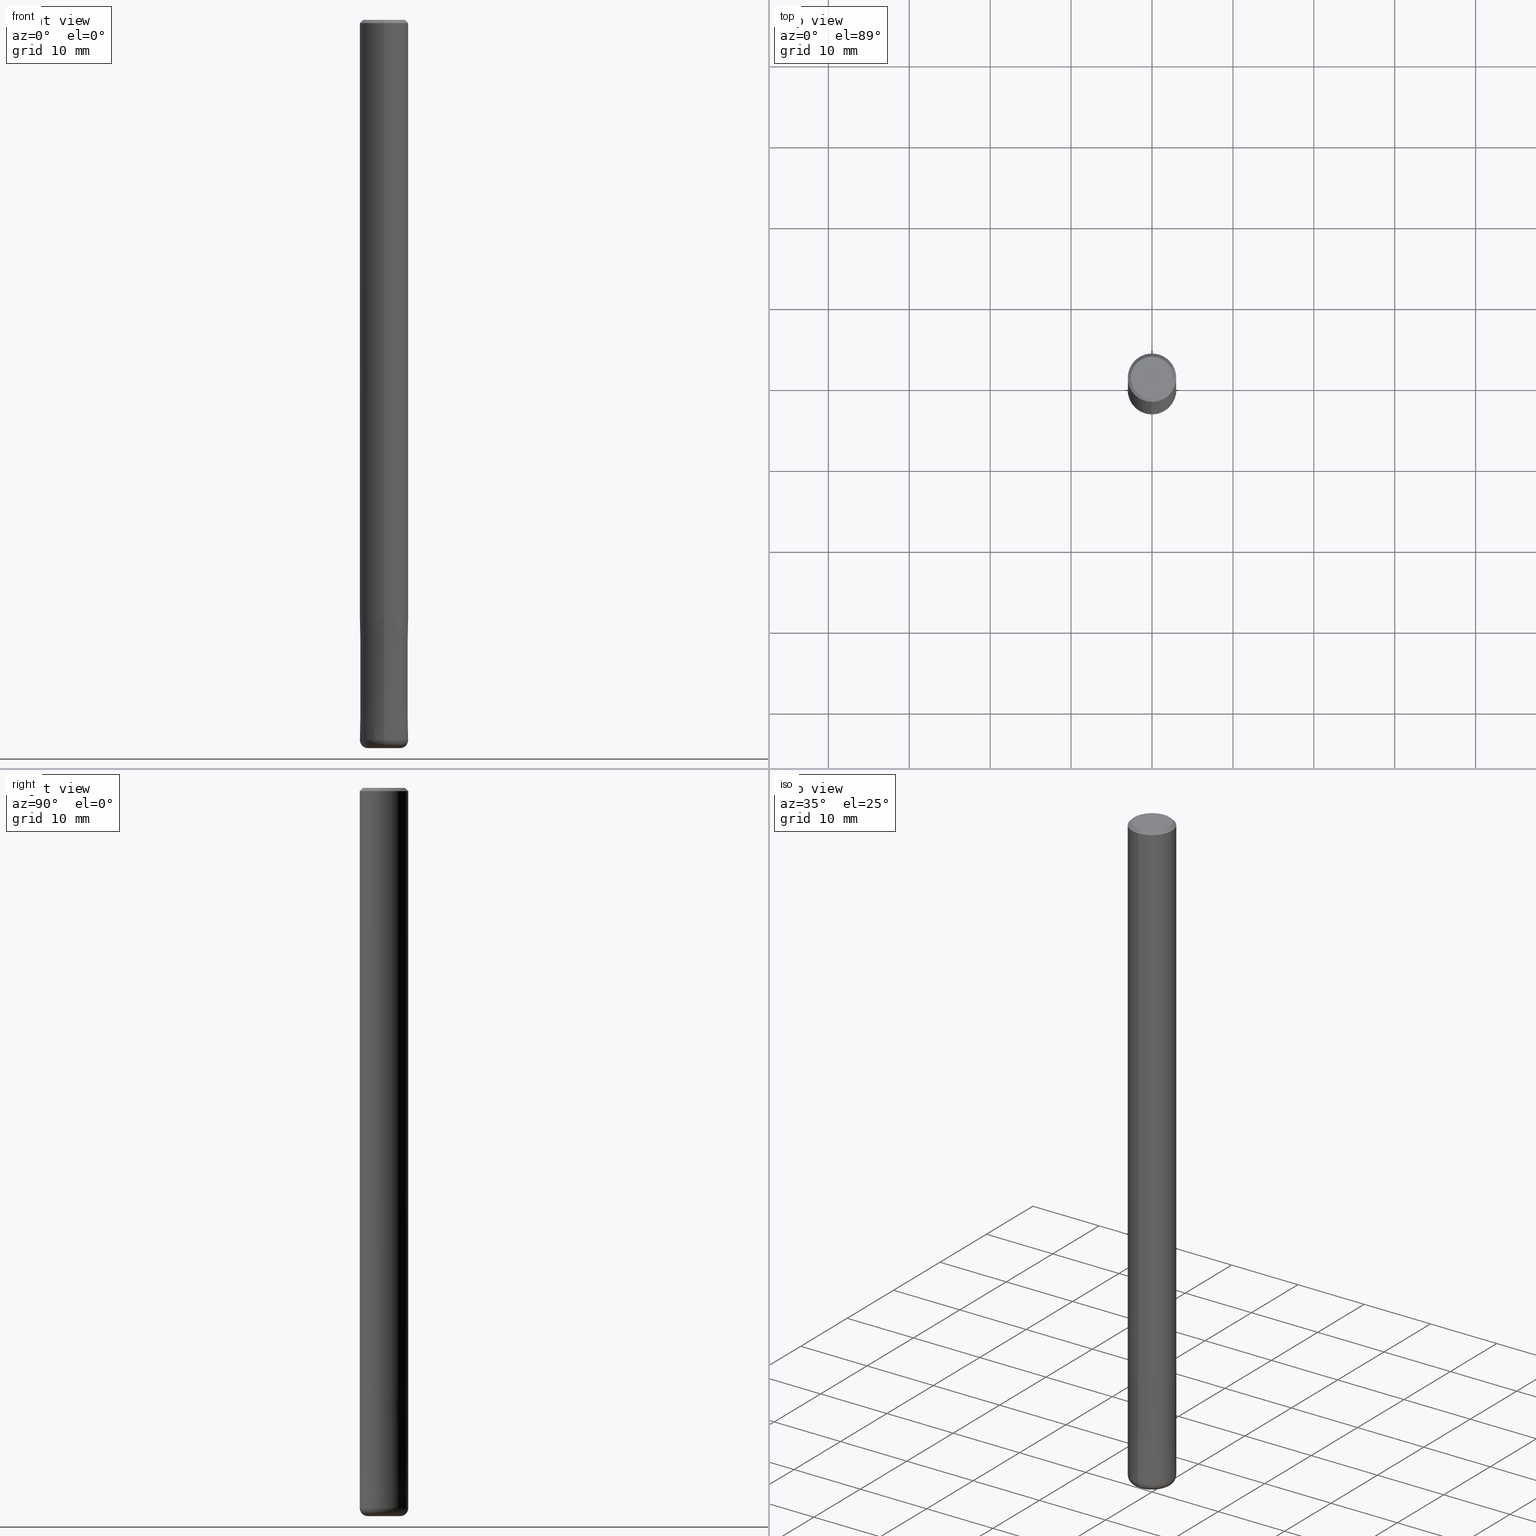
[diagram: canonical four-view strip — front | top / right | iso, engineering-drawing reading convention]
A machine part, canonical four-view strip (front | top / right | iso — engineering-drawing reading convention). The complete STEP part file that produces these views, byte-faithful:
ISO-10303-21;
HEADER;
FILE_DESCRIPTION(('no description'),'unknown implementation level');
FILE_NAME('CNRS4060-10-16-Huellk.stp','  ',('CIMSOURCE GmbH'),('CADClick - KiM GmbH - www.kimweb.de'),'unknown preprocess','ACIS','unknown authorization');
FILE_SCHEMA(('automotive_design'));
ENDSEC;
DATA;
#1=MECHANICAL_DESIGN_GEOMETRIC_PRESENTATION_REPRESENTATION(' ',(#10,#11,#12,#13,#14,#15,#16,#17,#18,#19,#20,#21,#22,#23,#24,#25,#26,#27,#28,#29,#30,#31,#32,#33,#34,#35,#36,#37,#38,#39,#40,#41,#42,#43,#44,#45,#46,#47,#48,#49,#50,#51,#52,#53),#6);
#2=PRODUCT_DEFINITION_CONTEXT('',#54,'design');
#3=APPLICATION_PROTOCOL_DEFINITION('INTERNATIONAL STANDARD','automotive_design',1994,#54);
#4=PRODUCT_CATEGORY_RELATIONSHIP('NONE','NONE',#55,#56);
#5=SHAPE_DEFINITION_REPRESENTATION(#57,#58);
#6= (GEOMETRIC_REPRESENTATION_CONTEXT(3)GLOBAL_UNCERTAINTY_ASSIGNED_CONTEXT((#61))GLOBAL_UNIT_ASSIGNED_CONTEXT((#63,#64,#65))REPRESENTATION_CONTEXT('NONE','WORKSPACE'));
#10=STYLED_ITEM('',(#67),#68);
#11=STYLED_ITEM('',(#69),#70);
#12=STYLED_ITEM('',(#71),#72);
#13=STYLED_ITEM('',(#73),#74);
#14=STYLED_ITEM('',(#75),#76);
#15=STYLED_ITEM('',(#77),#78);
#16=STYLED_ITEM('',(#79),#80);
#17=STYLED_ITEM('',(#81),#82);
#18=STYLED_ITEM('',(#83),#84);
#19=STYLED_ITEM('',(#85),#86);
#20=STYLED_ITEM('',(#87),#88);
#21=STYLED_ITEM('',(#89),#90);
#22=STYLED_ITEM('',(#91),#92);
#23=STYLED_ITEM('',(#93),#94);
#24=STYLED_ITEM('',(#95),#96);
#25=STYLED_ITEM('',(#97),#98);
#26=STYLED_ITEM('',(#99),#100);
#27=STYLED_ITEM('',(#101),#102);
#28=STYLED_ITEM('',(#103),#104);
#29=STYLED_ITEM('',(#105),#106);
#30=STYLED_ITEM('',(#107),#108);
#31=STYLED_ITEM('',(#109),#110);
#32=STYLED_ITEM('',(#111),#112);
#33=STYLED_ITEM('',(#113),#114);
#34=STYLED_ITEM('',(#115),#116);
#35=STYLED_ITEM('',(#117),#118);
#36=STYLED_ITEM('',(#119),#120);
#37=STYLED_ITEM('',(#121),#122);
#38=STYLED_ITEM('',(#123),#124);
#39=STYLED_ITEM('',(#125),#126);
#40=STYLED_ITEM('',(#127),#128);
#41=STYLED_ITEM('',(#129),#130);
#42=STYLED_ITEM('',(#131),#132);
#43=STYLED_ITEM('',(#133),#134);
#44=STYLED_ITEM('',(#135),#136);
#45=STYLED_ITEM('',(#137),#138);
#46=STYLED_ITEM('',(#139),#140);
#47=STYLED_ITEM('',(#141),#142);
#48=STYLED_ITEM('',(#143),#144);
#49=STYLED_ITEM('',(#145),#146);
#50=STYLED_ITEM('',(#147),#148);
#51=STYLED_ITEM('',(#149),#150);
#52=STYLED_ITEM('',(#151),#152);
#53=STYLED_ITEM('',(#153),#154);
#54=APPLICATION_CONTEXT(' ');
#55=PRODUCT_CATEGORY('part','NONE');
#56=PRODUCT_RELATED_PRODUCT_CATEGORY('detail',' ',(#155));
#57=PRODUCT_DEFINITION_SHAPE('NONE','NONE',#156);
#58=ADVANCED_BREP_SHAPE_REPRESENTATION('1',(#82,#157),#6);
#61=UNCERTAINTY_MEASURE_WITH_UNIT(LENGTH_MEASURE(1.0E-006),#63,'','');
#63= (CONVERSION_BASED_UNIT('MILLIMETRE',#160)LENGTH_UNIT()NAMED_UNIT(#163));
#64= (NAMED_UNIT(#165)PLANE_ANGLE_UNIT()SI_UNIT($,.RADIAN.));
#65= (NAMED_UNIT(#165)SOLID_ANGLE_UNIT()SI_UNIT($,.STERADIAN.));
#67=PRESENTATION_STYLE_ASSIGNMENT((#171));
#68=VERTEX_POINT('',#172);
#69=PRESENTATION_STYLE_ASSIGNMENT((#173));
#70=EDGE_CURVE('',#72,#68,#174,.T.);
#71=PRESENTATION_STYLE_ASSIGNMENT((#175));
#72=VERTEX_POINT('',#176);
#73=PRESENTATION_STYLE_ASSIGNMENT((#177));
#74=VERTEX_POINT('',#178);
#75=PRESENTATION_STYLE_ASSIGNMENT((#179));
#76=ADVANCED_FACE('',(#180),#181,.T.);
#77=PRESENTATION_STYLE_ASSIGNMENT((#182));
#78=VERTEX_POINT('',#183);
#79=PRESENTATION_STYLE_ASSIGNMENT((#184));
#80=VERTEX_POINT('',#185);
#81=PRESENTATION_STYLE_ASSIGNMENT((#186));
#82=MANIFOLD_SOLID_BREP('1',#187);
#83=PRESENTATION_STYLE_ASSIGNMENT((#188));
#84=ADVANCED_FACE('',(#189),#190,.T.);
#85=PRESENTATION_STYLE_ASSIGNMENT((#191));
#86=EDGE_CURVE('',#114,#106,#192,.T.);
#87=PRESENTATION_STYLE_ASSIGNMENT((#193));
#88=EDGE_CURVE('',#68,#80,#194,.T.);
#89=PRESENTATION_STYLE_ASSIGNMENT((#195));
#90=EDGE_CURVE('',#104,#72,#196,.T.);
#91=PRESENTATION_STYLE_ASSIGNMENT((#197));
#92=EDGE_CURVE('',#80,#142,#198,.T.);
#93=PRESENTATION_STYLE_ASSIGNMENT((#199));
#94=ADVANCED_FACE('',(#200),#201,.T.);
#95=PRESENTATION_STYLE_ASSIGNMENT((#202));
#96=VERTEX_POINT('',#203);
#97=PRESENTATION_STYLE_ASSIGNMENT((#204));
#98=EDGE_CURVE('',#104,#110,#205,.T.);
#99=PRESENTATION_STYLE_ASSIGNMENT((#206));
#100=ADVANCED_FACE('',(#207),#208,.T.);
#101=PRESENTATION_STYLE_ASSIGNMENT((#209));
#102=ADVANCED_FACE('',(#210),#211,.T.);
#103=PRESENTATION_STYLE_ASSIGNMENT((#212));
#104=VERTEX_POINT('',#213);
#105=PRESENTATION_STYLE_ASSIGNMENT((#214));
#106=VERTEX_POINT('',#215);
#107=PRESENTATION_STYLE_ASSIGNMENT((#216));
#108=EDGE_CURVE('',#78,#74,#217,.T.);
#109=PRESENTATION_STYLE_ASSIGNMENT((#218));
#110=VERTEX_POINT('',#219);
#111=PRESENTATION_STYLE_ASSIGNMENT((#220));
#112=EDGE_CURVE('',#110,#104,#221,.T.);
#113=PRESENTATION_STYLE_ASSIGNMENT((#222));
#114=VERTEX_POINT('',#223);
#115=PRESENTATION_STYLE_ASSIGNMENT((#224));
#116=EDGE_CURVE('',#142,#110,#225,.T.);
#117=PRESENTATION_STYLE_ASSIGNMENT((#226));
#118=EDGE_CURVE('',#106,#114,#227,.T.);
#119=PRESENTATION_STYLE_ASSIGNMENT((#228));
#120=ADVANCED_FACE('',(#229),#230,.T.);
#121=PRESENTATION_STYLE_ASSIGNMENT((#231));
#122=EDGE_CURVE('',#74,#78,#232,.T.);
#123=PRESENTATION_STYLE_ASSIGNMENT((#233));
#124=VERTEX_POINT('',#234);
#125=PRESENTATION_STYLE_ASSIGNMENT((#235));
#126=EDGE_CURVE('',#96,#124,#236,.T.);
#127=PRESENTATION_STYLE_ASSIGNMENT((#237));
#128=EDGE_CURVE('',#114,#78,#238,.T.);
#129=PRESENTATION_STYLE_ASSIGNMENT((#239));
#130=ADVANCED_FACE('',(#240),#241,.T.);
#131=PRESENTATION_STYLE_ASSIGNMENT((#242));
#132=EDGE_CURVE('',#74,#106,#243,.T.);
#133=PRESENTATION_STYLE_ASSIGNMENT((#244));
#134=EDGE_CURVE('',#80,#68,#245,.T.);
#135=PRESENTATION_STYLE_ASSIGNMENT((#246));
#136=EDGE_CURVE('',#72,#142,#247,.T.);
#137=PRESENTATION_STYLE_ASSIGNMENT((#248));
#138=ADVANCED_FACE('',(#249),#250,.T.);
#139=PRESENTATION_STYLE_ASSIGNMENT((#251));
#140=ADVANCED_FACE('',(#252),#253,.T.);
#141=PRESENTATION_STYLE_ASSIGNMENT((#254));
#142=VERTEX_POINT('',#255);
#143=PRESENTATION_STYLE_ASSIGNMENT((#256));
#144=EDGE_CURVE('',#74,#96,#257,.T.);
#145=PRESENTATION_STYLE_ASSIGNMENT((#258));
#146=EDGE_CURVE('',#124,#78,#259,.T.);
#147=PRESENTATION_STYLE_ASSIGNMENT((#260));
#148=EDGE_CURVE('',#142,#72,#261,.T.);
#149=PRESENTATION_STYLE_ASSIGNMENT((#262));
#150=EDGE_CURVE('',#124,#96,#263,.T.);
#151=PRESENTATION_STYLE_ASSIGNMENT((#264));
#152=ADVANCED_FACE('',(#265),#266,.T.);
#153=PRESENTATION_STYLE_ASSIGNMENT((#267));
#154=ADVANCED_FACE('',(#268,#269),#270,.T.);
#155=PRODUCT('1','1','PART-1-DESC',(#271));
#156=PRODUCT_DEFINITION('NONE','NONE',#272,#2);
#157=AXIS2_PLACEMENT_3D('',#273,#274,#275);
#160=LENGTH_MEASURE_WITH_UNIT(LENGTH_MEASURE(1.0),#276);
#163=DIMENSIONAL_EXPONENTS(1.0,0.0,0.0,0.0,0.0,0.0,0.0);
#165=DIMENSIONAL_EXPONENTS(0.0,0.0,0.0,0.0,0.0,0.0,0.0);
#171=POINT_STYLE(' ',#277,POSITIVE_LENGTH_MEASURE(1.0E-006),#278);
#172=CARTESIAN_POINT('',(0.0,3.0,-74.0));
#173=CURVE_STYLE('',#279,POSITIVE_LENGTH_MEASURE(1.0E-006),#280);
#174=LINE('',#281,#282);
#175=POINT_STYLE(' ',#283,POSITIVE_LENGTH_MEASURE(1.0E-006),#284);
#176=CARTESIAN_POINT('',(0.0,3.0,-0.400000000000006));
#177=POINT_STYLE(' ',#285,POSITIVE_LENGTH_MEASURE(1.0E-006),#286);
#178=CARTESIAN_POINT('',(3.67381906146713E-016,-3.0,-89.0));
#179=SURFACE_STYLE_USAGE(.BOTH.,#287);
#180=FACE_OUTER_BOUND('',#288,.T.);
#181=CYLINDRICAL_SURFACE('',#289,3.0);
#182=POINT_STYLE(' ',#290,POSITIVE_LENGTH_MEASURE(1.0E-006),#291);
#183=CARTESIAN_POINT('',(0.0,3.0,-89.0));
#184=POINT_STYLE(' ',#292,POSITIVE_LENGTH_MEASURE(1.0E-006),#293);
#185=CARTESIAN_POINT('',(3.67381906146713E-016,-3.0,-74.0));
#186=SURFACE_STYLE_USAGE(.BOTH.,#294);
#187=CLOSED_SHELL('',(#120,#138,#140,#130,#154,#84,#102,#76,#100,#152,#94));
#188=SURFACE_STYLE_USAGE(.BOTH.,#295);
#189=FACE_OUTER_BOUND('',#296,.T.);
#190=PLANE('',#297);
#191=CURVE_STYLE('',#298,POSITIVE_LENGTH_MEASURE(1.0E-006),#299);
#192=CIRCLE('',#300,2.9999);
#193=CURVE_STYLE('',#301,POSITIVE_LENGTH_MEASURE(1.0E-006),#302);
#194=CIRCLE('',#303,3.0);
#195=CURVE_STYLE('',#304,POSITIVE_LENGTH_MEASURE(1.0E-006),#305);
#196=LINE('',#306,#307);
#197=CURVE_STYLE('',#308,POSITIVE_LENGTH_MEASURE(1.0E-006),#309);
#198=LINE('',#310,#311);
#199=SURFACE_STYLE_USAGE(.BOTH.,#312);
#200=FACE_OUTER_BOUND('',#313,.T.);
#201=PLANE('',#314);
#202=POINT_STYLE(' ',#315,POSITIVE_LENGTH_MEASURE(1.0E-006),#316);
#203=CARTESIAN_POINT('',(2.44921270764475E-016,-2.0,-90.0));
#204=CURVE_STYLE('',#317,POSITIVE_LENGTH_MEASURE(1.0E-006),#318);
#205=CIRCLE('',#319,2.6);
#206=SURFACE_STYLE_USAGE(.BOTH.,#320);
#207=FACE_OUTER_BOUND('',#321,.T.);
#208=CONICAL_SURFACE('',#322,2.99995,6.66666666658197E-006);
#209=SURFACE_STYLE_USAGE(.BOTH.,#323);
#210=FACE_OUTER_BOUND('',#324,.T.);
#211=CONICAL_SURFACE('',#325,2.8,0.785398163397441);
#212=POINT_STYLE(' ',#326,POSITIVE_LENGTH_MEASURE(1.0E-006),#327);
#213=CARTESIAN_POINT('',(0.0,2.6,0.0));
#214=POINT_STYLE(' ',#328,POSITIVE_LENGTH_MEASURE(1.0E-006),#329);
#215=CARTESIAN_POINT('',(3.67369660083175E-016,-2.9999,-74.0));
#216=CURVE_STYLE('',#330,POSITIVE_LENGTH_MEASURE(1.0E-006),#331);
#217=CIRCLE('',#332,3.0);
#218=POINT_STYLE(' ',#333,POSITIVE_LENGTH_MEASURE(1.0E-006),#334);
#219=CARTESIAN_POINT('',(3.18397651993818E-016,-2.6,0.0));
#220=CURVE_STYLE('',#335,POSITIVE_LENGTH_MEASURE(1.0E-006),#336);
#221=CIRCLE('',#337,2.6);
#222=POINT_STYLE(' ',#338,POSITIVE_LENGTH_MEASURE(1.0E-006),#339);
#223=CARTESIAN_POINT('',(0.0,2.9999,-74.0));
#224=CURVE_STYLE('',#340,POSITIVE_LENGTH_MEASURE(1.0E-006),#341);
#225=LINE('',#342,#343);
#226=CURVE_STYLE('',#344,POSITIVE_LENGTH_MEASURE(1.0E-006),#345);
#227=CIRCLE('',#346,2.9999);
#228=SURFACE_STYLE_USAGE(.BOTH.,#347);
#229=FACE_OUTER_BOUND('',#348,.T.);
#230=TOROIDAL_SURFACE('',#349,2.0,1.0);
#231=CURVE_STYLE('',#350,POSITIVE_LENGTH_MEASURE(1.0E-006),#351);
#232=CIRCLE('',#352,3.0);
#233=POINT_STYLE(' ',#353,POSITIVE_LENGTH_MEASURE(1.0E-006),#354);
#234=CARTESIAN_POINT('',(0.0,2.0,-90.0));
#235=CURVE_STYLE('',#355,POSITIVE_LENGTH_MEASURE(1.0E-006),#356);
#236=CIRCLE('',#357,2.0);
#237=CURVE_STYLE('',#358,POSITIVE_LENGTH_MEASURE(1.0E-006),#359);
#238=LINE('',#360,#361);
#239=SURFACE_STYLE_USAGE(.BOTH.,#362);
#240=FACE_OUTER_BOUND('',#363,.T.);
#241=CONICAL_SURFACE('',#364,2.8,0.785398163397441);
#242=CURVE_STYLE('',#365,POSITIVE_LENGTH_MEASURE(1.0E-006),#366);
#243=LINE('',#367,#368);
#244=CURVE_STYLE('',#369,POSITIVE_LENGTH_MEASURE(1.0E-006),#370);
#245=CIRCLE('',#371,3.0);
#246=CURVE_STYLE('',#372,POSITIVE_LENGTH_MEASURE(1.0E-006),#373);
#247=CIRCLE('',#374,3.0);
#248=SURFACE_STYLE_USAGE(.BOTH.,#375);
#249=FACE_OUTER_BOUND('',#376,.T.);
#250=CONICAL_SURFACE('',#377,2.99995,6.66666666658197E-006);
#251=SURFACE_STYLE_USAGE(.BOTH.,#378);
#252=FACE_OUTER_BOUND('',#379,.T.);
#253=CYLINDRICAL_SURFACE('',#380,3.0);
#254=POINT_STYLE(' ',#381,POSITIVE_LENGTH_MEASURE(1.0E-006),#382);
#255=CARTESIAN_POINT('',(3.67381906146713E-016,-3.0,-0.400000000000006));
#256=CURVE_STYLE('',#383,POSITIVE_LENGTH_MEASURE(1.0E-006),#384);
#257=CIRCLE('',#385,1.0);
#258=CURVE_STYLE('',#386,POSITIVE_LENGTH_MEASURE(1.0E-006),#387);
#259=CIRCLE('',#388,1.0);
#260=CURVE_STYLE('',#389,POSITIVE_LENGTH_MEASURE(1.0E-006),#390);
#261=CIRCLE('',#391,3.0);
#262=CURVE_STYLE('',#392,POSITIVE_LENGTH_MEASURE(1.0E-006),#393);
#263=CIRCLE('',#394,2.0);
#264=SURFACE_STYLE_USAGE(.BOTH.,#395);
#265=FACE_OUTER_BOUND('',#396,.T.);
#266=TOROIDAL_SURFACE('',#397,2.0,1.0);
#267=SURFACE_STYLE_USAGE(.BOTH.,#398);
#268=FACE_OUTER_BOUND('',#399,.T.);
#269=FACE_BOUND('',#400,.T.);
#270=PLANE('',#401);
#271=PRODUCT_CONTEXT('',#54,'mechanical');
#272=PRODUCT_DEFINITION_FORMATION_WITH_SPECIFIED_SOURCE(' ','NONE',#155,.NOT_KNOWN.);
#273=CARTESIAN_POINT('',(0.0,0.0,0.0));
#274=DIRECTION('',(0.0,0.0,1.0));
#275=DIRECTION('',(1.0,0.0,0.0));
#276= (NAMED_UNIT(#163)LENGTH_UNIT()SI_UNIT(.MILLI.,.METRE.));
#277=PRE_DEFINED_MARKER('');
#278=COLOUR_RGB('',0.498039215803146,0.498039215803146,0.498039215803146);
#279=DRAUGHTING_PRE_DEFINED_CURVE_FONT('continuous');
#280=COLOUR_RGB('',0.498039215803146,0.498039215803146,0.498039215803146);
#281=CARTESIAN_POINT('',(-3.67381906146713E-016,3.0,-37.2));
#282=VECTOR('',#403,1.0);
#283=PRE_DEFINED_MARKER('');
#284=COLOUR_RGB('',0.498039215803146,0.498039215803146,0.498039215803146);
#285=PRE_DEFINED_MARKER('');
#286=COLOUR_RGB('',0.800000011920929,0.800000011920929,0.800000011920929);
#287=SURFACE_SIDE_STYLE('',(#404));
#288=EDGE_LOOP('',(#405,#406,#407,#408));
#289=AXIS2_PLACEMENT_3D('',#409,#410,#411);
#290=PRE_DEFINED_MARKER('');
#291=COLOUR_RGB('',0.800000011920929,0.800000011920929,0.800000011920929);
#292=PRE_DEFINED_MARKER('');
#293=COLOUR_RGB('',0.498039215803146,0.498039215803146,0.498039215803146);
#294=SURFACE_SIDE_STYLE('',(#412));
#295=SURFACE_SIDE_STYLE('',(#413));
#296=EDGE_LOOP('',(#414,#415));
#297=AXIS2_PLACEMENT_3D('',#416,#417,#418);
#298=DRAUGHTING_PRE_DEFINED_CURVE_FONT('continuous');
#299=COLOUR_RGB('',0.800000011920929,0.800000011920929,0.800000011920929);
#300=AXIS2_PLACEMENT_3D('',#419,#420,#421);
#301=DRAUGHTING_PRE_DEFINED_CURVE_FONT('continuous');
#302=COLOUR_RGB('',0.498039215803146,0.498039215803146,0.498039215803146);
#303=AXIS2_PLACEMENT_3D('',#422,#423,#424);
#304=DRAUGHTING_PRE_DEFINED_CURVE_FONT('continuous');
#305=COLOUR_RGB('',0.498039215803146,0.498039215803146,0.498039215803146);
#306=CARTESIAN_POINT('',(-3.42889779070266E-016,2.8,-0.200000000000003));
#307=VECTOR('',#425,1.0);
#308=DRAUGHTING_PRE_DEFINED_CURVE_FONT('continuous');
#309=COLOUR_RGB('',0.498039215803146,0.498039215803146,0.498039215803146);
#310=CARTESIAN_POINT('',(3.67381906146713E-016,-3.0,-37.2));
#311=VECTOR('',#426,1.0);
#312=SURFACE_SIDE_STYLE('',(#427));
#313=EDGE_LOOP('',(#428,#429));
#314=AXIS2_PLACEMENT_3D('',#430,#431,#432);
#315=PRE_DEFINED_MARKER('');
#316=COLOUR_RGB('',0.800000011920929,0.800000011920929,0.800000011920929);
#317=DRAUGHTING_PRE_DEFINED_CURVE_FONT('continuous');
#318=COLOUR_RGB('',0.498039215803146,0.498039215803146,0.498039215803146);
#319=AXIS2_PLACEMENT_3D('',#433,#434,#435);
#320=SURFACE_SIDE_STYLE('',(#436));
#321=EDGE_LOOP('',(#437,#438,#439,#440));
#322=AXIS2_PLACEMENT_3D('',#441,#442,#443);
#323=SURFACE_SIDE_STYLE('',(#444));
#324=EDGE_LOOP('',(#445,#446,#447,#448));
#325=AXIS2_PLACEMENT_3D('',#449,#450,#451);
#326=PRE_DEFINED_MARKER('');
#327=COLOUR_RGB('',0.498039215803146,0.498039215803146,0.498039215803146);
#328=PRE_DEFINED_MARKER('');
#329=COLOUR_RGB('',0.800000011920929,0.800000011920929,0.800000011920929);
#330=DRAUGHTING_PRE_DEFINED_CURVE_FONT('continuous');
#331=COLOUR_RGB('',0.800000011920929,0.800000011920929,0.800000011920929);
#332=AXIS2_PLACEMENT_3D('',#452,#453,#454);
#333=PRE_DEFINED_MARKER('');
#334=COLOUR_RGB('',0.498039215803146,0.498039215803146,0.498039215803146);
#335=DRAUGHTING_PRE_DEFINED_CURVE_FONT('continuous');
#336=COLOUR_RGB('',0.498039215803146,0.498039215803146,0.498039215803146);
#337=AXIS2_PLACEMENT_3D('',#455,#456,#457);
#338=PRE_DEFINED_MARKER('');
#339=COLOUR_RGB('',0.800000011920929,0.800000011920929,0.800000011920929);
#340=DRAUGHTING_PRE_DEFINED_CURVE_FONT('continuous');
#341=COLOUR_RGB('',0.498039215803146,0.498039215803146,0.498039215803146);
#342=CARTESIAN_POINT('',(3.42889779070266E-016,-2.8,-0.200000000000003));
#343=VECTOR('',#458,1.0);
#344=DRAUGHTING_PRE_DEFINED_CURVE_FONT('continuous');
#345=COLOUR_RGB('',0.800000011920929,0.800000011920929,0.800000011920929);
#346=AXIS2_PLACEMENT_3D('',#459,#460,#461);
#347=SURFACE_SIDE_STYLE('',(#462));
#348=EDGE_LOOP('',(#463,#464,#465,#466));
#349=AXIS2_PLACEMENT_3D('',#467,#468,#469);
#350=DRAUGHTING_PRE_DEFINED_CURVE_FONT('continuous');
#351=COLOUR_RGB('',0.800000011920929,0.800000011920929,0.800000011920929);
#352=AXIS2_PLACEMENT_3D('',#470,#471,#472);
#353=PRE_DEFINED_MARKER('');
#354=COLOUR_RGB('',0.800000011920929,0.800000011920929,0.800000011920929);
#355=DRAUGHTING_PRE_DEFINED_CURVE_FONT('continuous');
#356=COLOUR_RGB('',0.800000011920929,0.800000011920929,0.800000011920929);
#357=AXIS2_PLACEMENT_3D('',#473,#474,#475);
#358=DRAUGHTING_PRE_DEFINED_CURVE_FONT('continuous');
#359=COLOUR_RGB('',0.800000011920929,0.800000011920929,0.800000011920929);
#360=CARTESIAN_POINT('',(-3.67375783114944E-016,2.99995,-81.5));
#361=VECTOR('',#476,1.0);
#362=SURFACE_SIDE_STYLE('',(#477));
#363=EDGE_LOOP('',(#478,#479,#480,#481));
#364=AXIS2_PLACEMENT_3D('',#482,#483,#484);
#365=DRAUGHTING_PRE_DEFINED_CURVE_FONT('continuous');
#366=COLOUR_RGB('',0.800000011920929,0.800000011920929,0.800000011920929);
#367=CARTESIAN_POINT('',(3.67375783114944E-016,-2.99995,-81.5));
#368=VECTOR('',#485,1.0);
#369=DRAUGHTING_PRE_DEFINED_CURVE_FONT('continuous');
#370=COLOUR_RGB('',0.498039215803146,0.498039215803146,0.498039215803146);
#371=AXIS2_PLACEMENT_3D('',#486,#487,#488);
#372=DRAUGHTING_PRE_DEFINED_CURVE_FONT('continuous');
#373=COLOUR_RGB('',0.498039215803146,0.498039215803146,0.498039215803146);
#374=AXIS2_PLACEMENT_3D('',#489,#490,#491);
#375=SURFACE_SIDE_STYLE('',(#492));
#376=EDGE_LOOP('',(#493,#494,#495,#496));
#377=AXIS2_PLACEMENT_3D('',#497,#498,#499);
#378=SURFACE_SIDE_STYLE('',(#500));
#379=EDGE_LOOP('',(#501,#502,#503,#504));
#380=AXIS2_PLACEMENT_3D('',#505,#506,#507);
#381=PRE_DEFINED_MARKER('');
#382=COLOUR_RGB('',0.498039215803146,0.498039215803146,0.498039215803146);
#383=DRAUGHTING_PRE_DEFINED_CURVE_FONT('continuous');
#384=COLOUR_RGB('',0.800000011920929,0.800000011920929,0.800000011920929);
#385=AXIS2_PLACEMENT_3D('',#508,#509,#510);
#386=DRAUGHTING_PRE_DEFINED_CURVE_FONT('continuous');
#387=COLOUR_RGB('',0.800000011920929,0.800000011920929,0.800000011920929);
#388=AXIS2_PLACEMENT_3D('',#511,#512,#513);
#389=DRAUGHTING_PRE_DEFINED_CURVE_FONT('continuous');
#390=COLOUR_RGB('',0.498039215803146,0.498039215803146,0.498039215803146);
#391=AXIS2_PLACEMENT_3D('',#514,#515,#516);
#392=DRAUGHTING_PRE_DEFINED_CURVE_FONT('continuous');
#393=COLOUR_RGB('',0.800000011920929,0.800000011920929,0.800000011920929);
#394=AXIS2_PLACEMENT_3D('',#517,#518,#519);
#395=SURFACE_SIDE_STYLE('',(#520));
#396=EDGE_LOOP('',(#521,#522,#523,#524));
#397=AXIS2_PLACEMENT_3D('',#525,#526,#527);
#398=SURFACE_SIDE_STYLE('',(#528));
#399=EDGE_LOOP('',(#529,#530));
#400=EDGE_LOOP('',(#531,#532));
#401=AXIS2_PLACEMENT_3D('',#533,#534,#535);
#403=DIRECTION('',(0.0,0.0,-1.0));
#404=SURFACE_STYLE_FILL_AREA(#536);
#405=ORIENTED_EDGE('',*,*,#70,.T.);
#406=ORIENTED_EDGE('',*,*,#134,.F.);
#407=ORIENTED_EDGE('',*,*,#92,.T.);
#408=ORIENTED_EDGE('',*,*,#148,.T.);
#409=CARTESIAN_POINT('',(0.0,0.0,-37.2));
#410=DIRECTION('',(-0.0,-0.0,1.0));
#411=DIRECTION('',(0.0,1.0,0.0));
#412=SURFACE_STYLE_FILL_AREA(#537);
#413=SURFACE_STYLE_FILL_AREA(#538);
#414=ORIENTED_EDGE('',*,*,#98,.F.);
#415=ORIENTED_EDGE('',*,*,#112,.F.);
#416=CARTESIAN_POINT('',(0.0,1.3,0.0));
#417=DIRECTION('',(-0.0,0.0,1.0));
#418=DIRECTION('',(0.0,-1.0,0.0));
#419=CARTESIAN_POINT('',(0.0,0.0,-74.0));
#420=DIRECTION('',(0.0,0.0,-1.0));
#421=DIRECTION('',(0.0,1.0,0.0));
#422=CARTESIAN_POINT('',(0.0,0.0,-74.0));
#423=DIRECTION('',(0.0,0.0,-1.0));
#424=DIRECTION('',(0.0,1.0,0.0));
#425=DIRECTION('',(-8.65927457071929E-017,0.707106781186542,-0.707106781186553));
#426=DIRECTION('',(-0.0,-0.0,1.0));
#427=SURFACE_STYLE_FILL_AREA(#539);
#428=ORIENTED_EDGE('',*,*,#150,.T.);
#429=ORIENTED_EDGE('',*,*,#126,.T.);
#430=CARTESIAN_POINT('',(0.0,1.0,-90.0));
#431=DIRECTION('',(0.0,0.0,-1.0));
#432=DIRECTION('',(0.0,1.0,0.0));
#433=CARTESIAN_POINT('',(0.0,0.0,0.0));
#434=DIRECTION('',(0.0,0.0,-1.0));
#435=DIRECTION('',(0.0,1.0,0.0));
#436=SURFACE_STYLE_FILL_AREA(#540);
#437=ORIENTED_EDGE('',*,*,#128,.T.);
#438=ORIENTED_EDGE('',*,*,#122,.F.);
#439=ORIENTED_EDGE('',*,*,#132,.T.);
#440=ORIENTED_EDGE('',*,*,#118,.T.);
#441=CARTESIAN_POINT('',(0.0,0.0,-81.5));
#442=DIRECTION('',(0.0,-0.0,-1.0));
#443=DIRECTION('',(0.0,1.0,0.0));
#444=SURFACE_STYLE_FILL_AREA(#541);
#445=ORIENTED_EDGE('',*,*,#90,.T.);
#446=ORIENTED_EDGE('',*,*,#148,.F.);
#447=ORIENTED_EDGE('',*,*,#116,.T.);
#448=ORIENTED_EDGE('',*,*,#112,.T.);
#449=CARTESIAN_POINT('',(0.0,0.0,-0.200000000000003));
#450=DIRECTION('',(0.0,-0.0,-1.0));
#451=DIRECTION('',(0.0,1.0,0.0));
#452=CARTESIAN_POINT('',(0.0,0.0,-89.0));
#453=DIRECTION('',(0.0,0.0,-1.0));
#454=DIRECTION('',(0.0,1.0,0.0));
#455=CARTESIAN_POINT('',(0.0,0.0,0.0));
#456=DIRECTION('',(0.0,0.0,-1.0));
#457=DIRECTION('',(0.0,1.0,0.0));
#458=DIRECTION('',(-8.65927457071929E-017,0.707106781186542,0.707106781186553));
#459=CARTESIAN_POINT('',(0.0,0.0,-74.0));
#460=DIRECTION('',(0.0,0.0,-1.0));
#461=DIRECTION('',(0.0,1.0,0.0));
#462=SURFACE_STYLE_FILL_AREA(#542);
#463=ORIENTED_EDGE('',*,*,#144,.F.);
#464=ORIENTED_EDGE('',*,*,#122,.T.);
#465=ORIENTED_EDGE('',*,*,#146,.F.);
#466=ORIENTED_EDGE('',*,*,#126,.F.);
#467=CARTESIAN_POINT('',(0.0,0.0,-89.0));
#468=DIRECTION('',(0.0,0.0,-1.0));
#469=DIRECTION('',(0.0,-1.0,0.0));
#470=CARTESIAN_POINT('',(0.0,0.0,-89.0));
#471=DIRECTION('',(0.0,0.0,-1.0));
#472=DIRECTION('',(0.0,1.0,0.0));
#473=CARTESIAN_POINT('',(0.0,0.0,-90.0));
#474=DIRECTION('',(0.0,0.0,-1.0));
#475=DIRECTION('',(0.0,1.0,0.0));
#476=DIRECTION('',(-8.16404235865165E-022,6.66666666653259E-006,-0.999999999977778));
#477=SURFACE_STYLE_FILL_AREA(#543);
#478=ORIENTED_EDGE('',*,*,#90,.F.);
#479=ORIENTED_EDGE('',*,*,#98,.T.);
#480=ORIENTED_EDGE('',*,*,#116,.F.);
#481=ORIENTED_EDGE('',*,*,#136,.F.);
#482=CARTESIAN_POINT('',(0.0,0.0,-0.200000000000003));
#483=DIRECTION('',(0.0,-0.0,-1.0));
#484=DIRECTION('',(0.0,1.0,0.0));
#485=DIRECTION('',(-8.16404235865165E-022,6.66666666653259E-006,0.999999999977778));
#486=CARTESIAN_POINT('',(0.0,0.0,-74.0));
#487=DIRECTION('',(0.0,0.0,-1.0));
#488=DIRECTION('',(0.0,1.0,0.0));
#489=CARTESIAN_POINT('',(0.0,0.0,-0.400000000000006));
#490=DIRECTION('',(0.0,0.0,-1.0));
#491=DIRECTION('',(0.0,1.0,0.0));
#492=SURFACE_STYLE_FILL_AREA(#544);
#493=ORIENTED_EDGE('',*,*,#128,.F.);
#494=ORIENTED_EDGE('',*,*,#86,.T.);
#495=ORIENTED_EDGE('',*,*,#132,.F.);
#496=ORIENTED_EDGE('',*,*,#108,.F.);
#497=CARTESIAN_POINT('',(0.0,0.0,-81.5));
#498=DIRECTION('',(0.0,-0.0,-1.0));
#499=DIRECTION('',(0.0,1.0,0.0));
#500=SURFACE_STYLE_FILL_AREA(#545);
#501=ORIENTED_EDGE('',*,*,#70,.F.);
#502=ORIENTED_EDGE('',*,*,#136,.T.);
#503=ORIENTED_EDGE('',*,*,#92,.F.);
#504=ORIENTED_EDGE('',*,*,#88,.F.);
#505=CARTESIAN_POINT('',(0.0,0.0,-37.2));
#506=DIRECTION('',(-0.0,-0.0,1.0));
#507=DIRECTION('',(0.0,1.0,0.0));
#508=CARTESIAN_POINT('',(2.44921270764475E-016,-2.0,-89.0));
#509=DIRECTION('',(1.0,1.22460635382238E-016,0.0));
#510=DIRECTION('',(1.22460635382238E-016,-1.0,-0.0));
#511=CARTESIAN_POINT('',(-2.44921270764475E-016,2.0,-89.0));
#512=DIRECTION('',(1.0,1.22460635382238E-016,0.0));
#513=DIRECTION('',(-1.22460635382238E-016,1.0,0.0));
#514=CARTESIAN_POINT('',(0.0,0.0,-0.400000000000006));
#515=DIRECTION('',(0.0,0.0,-1.0));
#516=DIRECTION('',(0.0,1.0,0.0));
#517=CARTESIAN_POINT('',(0.0,0.0,-90.0));
#518=DIRECTION('',(0.0,0.0,-1.0));
#519=DIRECTION('',(0.0,1.0,0.0));
#520=SURFACE_STYLE_FILL_AREA(#546);
#521=ORIENTED_EDGE('',*,*,#144,.T.);
#522=ORIENTED_EDGE('',*,*,#150,.F.);
#523=ORIENTED_EDGE('',*,*,#146,.T.);
#524=ORIENTED_EDGE('',*,*,#108,.T.);
#525=CARTESIAN_POINT('',(0.0,0.0,-89.0));
#526=DIRECTION('',(0.0,0.0,-1.0));
#527=DIRECTION('',(0.0,-1.0,0.0));
#528=SURFACE_STYLE_FILL_AREA(#547);
#529=ORIENTED_EDGE('',*,*,#88,.T.);
#530=ORIENTED_EDGE('',*,*,#134,.T.);
#531=ORIENTED_EDGE('',*,*,#86,.F.);
#532=ORIENTED_EDGE('',*,*,#118,.F.);
#533=CARTESIAN_POINT('',(0.0,1.5,-74.0));
#534=DIRECTION('',(0.0,0.0,-1.0));
#535=DIRECTION('',(0.0,1.0,0.0));
#536=FILL_AREA_STYLE('',(#548));
#537=FILL_AREA_STYLE('',(#549));
#538=FILL_AREA_STYLE('',(#550));
#539=FILL_AREA_STYLE('',(#551));
#540=FILL_AREA_STYLE('',(#552));
#541=FILL_AREA_STYLE('',(#553));
#542=FILL_AREA_STYLE('',(#554));
#543=FILL_AREA_STYLE('',(#555));
#544=FILL_AREA_STYLE('',(#556));
#545=FILL_AREA_STYLE('',(#557));
#546=FILL_AREA_STYLE('',(#558));
#547=FILL_AREA_STYLE('',(#559));
#548=FILL_AREA_STYLE_COLOUR('',#560);
#549=FILL_AREA_STYLE_COLOUR('',#561);
#550=FILL_AREA_STYLE_COLOUR('',#562);
#551=FILL_AREA_STYLE_COLOUR('',#563);
#552=FILL_AREA_STYLE_COLOUR('',#564);
#553=FILL_AREA_STYLE_COLOUR('',#565);
#554=FILL_AREA_STYLE_COLOUR('',#566);
#555=FILL_AREA_STYLE_COLOUR('',#567);
#556=FILL_AREA_STYLE_COLOUR('',#568);
#557=FILL_AREA_STYLE_COLOUR('',#569);
#558=FILL_AREA_STYLE_COLOUR('',#570);
#559=FILL_AREA_STYLE_COLOUR('',#571);
#560=COLOUR_RGB('',0.498039215803146,0.498039215803146,0.498039215803146);
#561=COLOUR_RGB('',0.800000011920929,0.800000011920929,0.800000011920929);
#562=COLOUR_RGB('',0.498039215803146,0.498039215803146,0.498039215803146);
#563=COLOUR_RGB('',0.800000011920929,0.800000011920929,0.800000011920929);
#564=COLOUR_RGB('',0.800000011920929,0.800000011920929,0.800000011920929);
#565=COLOUR_RGB('',0.498039215803146,0.498039215803146,0.498039215803146);
#566=COLOUR_RGB('',0.800000011920929,0.800000011920929,0.800000011920929);
#567=COLOUR_RGB('',0.498039215803146,0.498039215803146,0.498039215803146);
#568=COLOUR_RGB('',0.800000011920929,0.800000011920929,0.800000011920929);
#569=COLOUR_RGB('',0.498039215803146,0.498039215803146,0.498039215803146);
#570=COLOUR_RGB('',0.800000011920929,0.800000011920929,0.800000011920929);
#571=COLOUR_RGB('',0.498039215803146,0.498039215803146,0.498039215803146);
#572=AXIS2_PLACEMENT_3D('PCS',#573,#574,#575);
#573=CARTESIAN_POINT('',(0.0,0.0,0.0));
#574=DIRECTION('',(0.0,0.0,1.0));
#575=DIRECTION('',(1.0,0.0,0.0));
#576=AXIS2_PLACEMENT_3D('CIP',#577,#578,#579);
#577=CARTESIAN_POINT('',(0.0,0.0,-90.0));
#578=DIRECTION('',(0.0,0.0,1.0));
#579=DIRECTION('',(1.0,0.0,0.0));
#580=AXIS2_PLACEMENT_3D('CRP',#581,#582,#583);
#581=CARTESIAN_POINT('',(-3.0,0.0,-90.0));
#582=DIRECTION('',(0.0,0.0,1.0));
#583=DIRECTION('',(1.0,0.0,0.0));
#584=AXIS2_PLACEMENT_3D('MCS',#585,#586,#587);
#585=CARTESIAN_POINT('',(0.0,0.0,-74.0));
#586=DIRECTION('',(0.0,0.0,1.0));
#587=DIRECTION('',(1.0,0.0,0.0));
#588=CONSTRUCTIVE_GEOMETRY_REPRESENTATION_RELATIONSHIP('coordinate systems',$,#58,#589);
#589=CONSTRUCTIVE_GEOMETRY_REPRESENTATION('coordinate systems',(#572,#576,#580,#584),#6);
ENDSEC;
END-ISO-10303-21;
